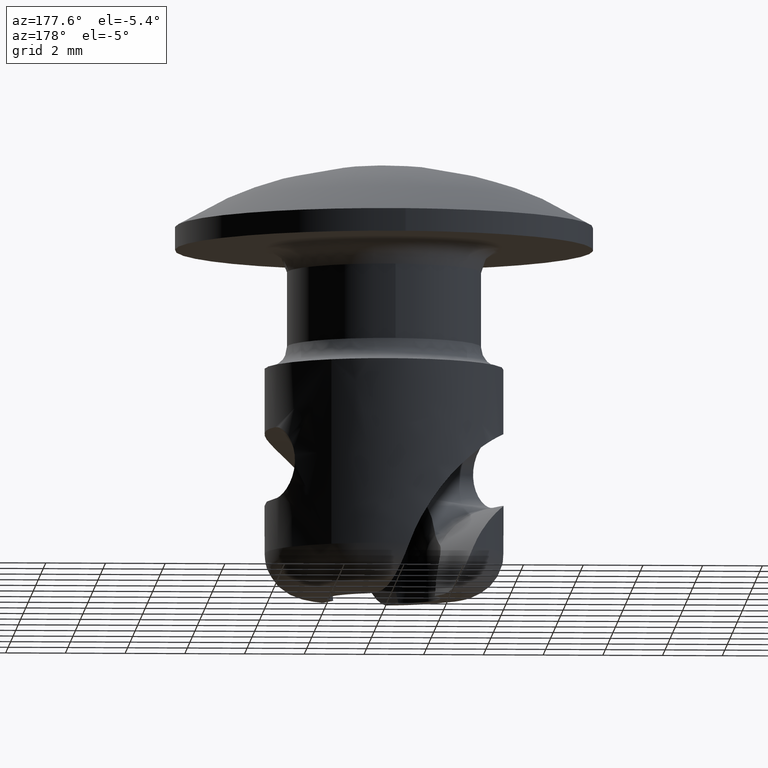
[diagram: clean part render]
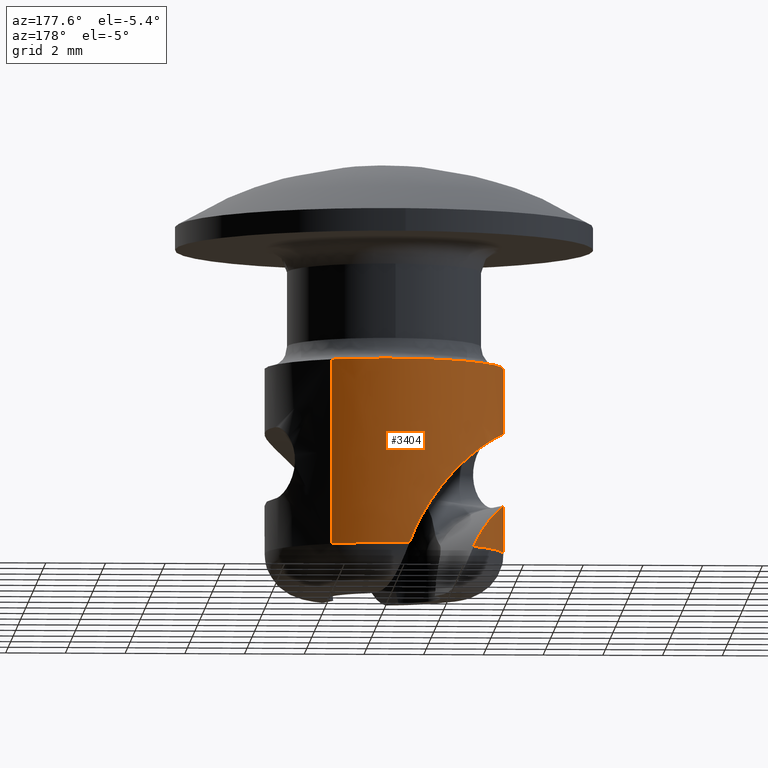
[diagram: same view with one face highlighted and labeled with its STEP entity id]
A machine part, auxiliary view. The second image highlights one B-rep face of the part: STEP entity #3404.
In plain terms, the highlighted face is a freeform B-spline surface patch.
Its self-contained STEP definition (entity closure, byte-faithful):
#938=CARTESIAN_POINT('',(1.908641485124764,3.515267261082327,3.658265999999905));
#939=VERTEX_POINT('',#938);
#953=CARTESIAN_POINT('',(-4.000002039269875,0.0,3.658265999999916));
#954=VERTEX_POINT('',#953);
#955=CARTESIAN_POINT('',(-4.000002039269875,0.0,3.658265999999916));
#956=CARTESIAN_POINT('',(-4.000002040662801,4.000002036704778,3.658265999999914));
#957=CARTESIAN_POINT('',(-3.748949E-009,4.000002032392859,3.658265999999907));
#958=CARTESIAN_POINT('',(1.015874415805972,4.000002031297769,3.658265999999906));
#959=CARTESIAN_POINT('',(1.908641485124764,3.515267261082327,3.658265999999905));
#967=(BOUNDED_CURVE()B_SPLINE_CURVE(2,(#955,#956,#957,#958,#959),.UNSPECIFIED.,.F.,.U.)B_SPLINE_CURVE_WITH_KNOTS((3,2,3),(0.0,0.250000000000000,0.331244701574616),.UNSPECIFIED.)CURVE()GEOMETRIC_REPRESENTATION_ITEM()RATIONAL_B_SPLINE_CURVE((1.0,0.707106781186547,1.0,0.904815911377089,0.871497445752740))REPRESENTATION_ITEM(''));
#968=EDGE_CURVE('',#954,#939,#967,.T.);
#970=CARTESIAN_POINT('',(-3.998738795728591,-0.100520433034861,3.658265999999916));
#971=VERTEX_POINT('',#970);
#972=CARTESIAN_POINT('',(-3.998738795728591,-0.100520433034861,3.658265999999915));
#973=CARTESIAN_POINT('',(-4.000002039254836,-0.050268154128324,3.658265999999916));
#974=CARTESIAN_POINT('',(-4.000002039269875,0.0,3.658265999999916));
#982=(BOUNDED_CURVE()B_SPLINE_CURVE(2,(#972,#973,#974),.UNSPECIFIED.,.F.,.U.)B_SPLINE_CURVE_WITH_KNOTS((3,3),(0.995579891769142,1.0),.UNSPECIFIED.)CURVE()GEOMETRIC_REPRESENTATION_ITEM()RATIONAL_B_SPLINE_CURVE((0.989826157680071,0.994821521091040,1.0))REPRESENTATION_ITEM(''));
#983=EDGE_CURVE('',#971,#954,#982,.T.);
#1026=CARTESIAN_POINT('',(-1.908641485124764,-3.515267261082327,3.658265999999904));
#1027=VERTEX_POINT('',#1026);
#1028=CARTESIAN_POINT('',(-1.908641485124764,-3.515267261082327,3.658265999999905));
#1029=CARTESIAN_POINT('',(-3.940633201038001,-2.411981684536027,3.658265999999910));
#1030=CARTESIAN_POINT('',(-3.998738795728591,-0.100520433034861,3.658265999999915));
#1038=(BOUNDED_CURVE()B_SPLINE_CURVE(2,(#1028,#1029,#1030),.UNSPECIFIED.,.F.,.U.)B_SPLINE_CURVE_WITH_KNOTS((3,3),(0.831244701574616,0.995579891769142),.UNSPECIFIED.)CURVE()GEOMETRIC_REPRESENTATION_ITEM()RATIONAL_B_SPLINE_CURVE((0.871497445752740,0.804103556929867,0.989826157680071))REPRESENTATION_ITEM(''));
#1039=EDGE_CURVE('',#1027,#971,#1038,.T.);
#1169=CARTESIAN_POINT('',(-3.708740166080650,-1.498420013742334,-0.841730999884860));
#1170=VERTEX_POINT('',#1169);
#1775=CARTESIAN_POINT('',(-2.884555229671560,2.771165301272810,-2.541731000000470));
#1776=VERTEX_POINT('',#1775);
#1777=CARTESIAN_POINT('',(-3.708740166080650,-1.498420013742334,-0.841730999884860));
#1778=CARTESIAN_POINT('',(-3.789603342791146,-1.298275522429606,-0.841731085191805));
#1779=CARTESIAN_POINT('',(-3.853266608022815,-1.094363711314453,-0.844898699676440));
#1780=CARTESIAN_POINT('',(-3.947624874398893,-0.679377164730645,-0.858888886197769));
#1781=CARTESIAN_POINT('',(-3.978314908902422,-0.468300505837197,-0.869689622124139));
#1782=CARTESIAN_POINT('',(-3.998773955492142,-0.146262357777916,-0.895468754313125));
#1783=CARTESIAN_POINT('',(-4.001214435422670,-0.039356055029581,-0.905592794241437));
#1784=CARTESIAN_POINT('',(-3.997677503401662,0.172743829529598,-0.929588470703924));
#1785=CARTESIAN_POINT('',(-3.991706842258776,0.278059572015497,-0.943468917006909));
#1786=CARTESIAN_POINT('',(-3.961579676277360,0.591608507315564,-0.992173819946064));
#1787=CARTESIAN_POINT('',(-3.925240589785189,0.797473242374740,-1.033901799248098));
#1788=CARTESIAN_POINT('',(-3.860135973660301,1.049801262182792,-1.104303979249838));
#1789=CARTESIAN_POINT('',(-3.846160973754782,1.099865145250535,-1.119274116367571));
#1790=CARTESIAN_POINT('',(-3.816631997633517,1.198322896425329,-1.150875348232507));
#1791=CARTESIAN_POINT('',(-3.801046300725309,1.246842307484333,-1.167540746194647));
#1792=CARTESIAN_POINT('',(-3.751988769043546,1.390254244868291,-1.220316447285539));
#1793=CARTESIAN_POINT('',(-3.716216162029630,1.483002367819371,-1.259201711167339));
#1794=CARTESIAN_POINT('',(-3.639395182733260,1.662636845654967,-1.345457747218346));
#1795=CARTESIAN_POINT('',(-3.598344842298541,1.749523326163017,-1.392826489075745));
#1796=CARTESIAN_POINT('',(-3.533479603993701,1.875303522526065,-1.471180455769283));
#1797=CARTESIAN_POINT('',(-3.511259477338315,1.916552436971531,-1.498584499654438));
#1798=CARTESIAN_POINT('',(-3.466426671580432,1.996497554886817,-1.555254974171278));
#1799=CARTESIAN_POINT('',(-3.443755817943394,2.035314400837107,-1.584589094828801));
#1800=CARTESIAN_POINT('',(-3.329540518945864,2.223794195843674,-1.736356739794271));
#1801=CARTESIAN_POINT('',(-3.235430647707428,2.356708378572311,-1.874027955967950));
#1802=CARTESIAN_POINT('',(-3.120600981695306,2.502647577831652,-2.068504378930841));
#1803=CARTESIAN_POINT('',(-3.097723793038400,2.530882099920727,-2.108617462539967));
#1804=CARTESIAN_POINT('',(-3.052670196831338,2.585045757211015,-2.190677628121291));
#1805=CARTESIAN_POINT('',(-3.030528409444796,2.610938036005944,-2.232554031894098));
#1806=CARTESIAN_POINT('',(-2.965449095197070,2.685230547071238,-2.360714131926009));
#1807=CARTESIAN_POINT('',(-2.923857825347109,2.730254531340306,-2.449524356297505));
#1808=CARTESIAN_POINT('',(-2.884555229671560,2.771165301272810,-2.541731000000470));
#1809=B_SPLINE_CURVE_WITH_KNOTS('',3,(#1777,#1778,#1779,#1780,#1781,#1782,#1783,#1784,#1785,#1786,#1787,#1788,#1789,#1790,#1791,#1792,#1793,#1794,#1795,#1796,#1797,#1798,#1799,#1800,#1801,#1802,#1803,#1804,#1805,#1806,#1807,#1808),.UNSPECIFIED.,.F.,.U.,(4,2,2,2,2,2,2,2,2,2,2,2,2,2,2,4),(0.0,0.125000000000000,0.250000000000000,0.312500000000000,0.375000000000000,0.500000000000000,0.531250000000000,0.562500000000000,0.625000000000000,0.687500000000000,0.718750000000000,0.750000000000000,0.875000000000000,0.906250000000000,0.937500000000000,1.0),.UNSPECIFIED.);
#1810=EDGE_CURVE('',#1170,#1776,#1809,.T.);
#2698=CARTESIAN_POINT('',(-1.908643068549767,-3.515266381128359,-2.541731000000000));
#2699=VERTEX_POINT('',#2698);
#2713=CARTESIAN_POINT('',(-1.908643068549767,-3.515266381128359,-2.541731000000000));
#2714=CARTESIAN_POINT('',(-2.966838043183742,-2.940710627283791,-2.541731000000055));
#2715=CARTESIAN_POINT('',(-3.532011302466343,-1.877474952365220,-2.541731000000139));
#2716=CARTESIAN_POINT('',(-4.892194440281170,0.681377952995384,-2.541731000000340));
#2717=CARTESIAN_POINT('',(-2.884555229671560,2.771165301272810,-2.541731000000470));
#2725=(BOUNDED_CURVE()B_SPLINE_CURVE(2,(#2713,#2714,#2715,#2716,#2717),.UNSPECIFIED.,.F.,.U.)B_SPLINE_CURVE_WITH_KNOTS((3,2,3),(0.266260725077179,0.500000000000000,1.0),.UNSPECIFIED.)CURVE()GEOMETRIC_REPRESENTATION_ITEM()RATIONAL_B_SPLINE_CURVE((0.905308572045853,0.911091442488655,1.0,0.809812541044500,1.0))REPRESENTATION_ITEM(''));
#2726=EDGE_CURVE('',#2699,#1776,#2725,.T.);
#2964=CARTESIAN_POINT('',(-3.708740166083640,-1.498420013741502,1.558268999999575));
#2965=VERTEX_POINT('',#2964);
#2966=CARTESIAN_POINT('',(-3.708740166083640,-1.498420013741502,1.558268999999575));
#2967=CARTESIAN_POINT('',(-3.693984804503108,-1.534941016963111,1.558269545527997));
#2968=CARTESIAN_POINT('',(-3.678609929491789,-1.571438163734566,1.556330085236199));
#2969=CARTESIAN_POINT('',(-3.646729819276201,-1.644065248400654,1.548455094508398));
#2970=CARTESIAN_POINT('',(-3.630464258008951,-1.679654045086679,1.542584198483850));
#2971=CARTESIAN_POINT('',(-3.580789229225651,-1.784358087390900,1.519388538524475));
#2972=CARTESIAN_POINT('',(-3.546496214110912,-1.851424095955877,1.496534584532224));
#2973=CARTESIAN_POINT('',(-3.493747797755471,-1.948099096153773,1.451016600783363));
#2974=CARTESIAN_POINT('',(-3.476010681946088,-1.979540814555592,1.433990395770993));
#2975=CARTESIAN_POINT('',(-3.440971407175696,-2.039840158564334,1.396914775807178));
#2976=CARTESIAN_POINT('',(-3.406186145007936,-2.097889614268136,1.356665676308153));
#2977=CARTESIAN_POINT('',(-3.372145822648671,-2.151649813060058,1.310156958417208));
#2978=CARTESIAN_POINT('',(-3.338620239168296,-2.203310978019238,1.260464214225891));
#2979=CARTESIAN_POINT('',(-3.322040082755243,-2.228198212001126,1.233882838865567));
#2980=CARTESIAN_POINT('',(-3.274233967292055,-2.298393741251017,1.150769080897216));
#2981=CARTESIAN_POINT('',(-3.244710284799387,-2.339632263326918,1.090666577720010));
#2982=CARTESIAN_POINT('',(-3.191484927614344,-2.411731311046215,0.961031912711963));
#2983=CARTESIAN_POINT('',(-3.167663022440433,-2.442724565092989,0.890784038392186));
#2984=CARTESIAN_POINT('',(-3.129119018645331,-2.491908202920440,0.746202575940968));
#2985=CARTESIAN_POINT('',(-3.114107283994574,-2.510501039214634,0.671378398995348));
#2986=CARTESIAN_POINT('',(-3.098748930936733,-2.529394609742397,0.555178428091249));
#2987=CARTESIAN_POINT('',(-3.094827956845908,-2.534180868814679,0.515595312487187));
#2988=CARTESIAN_POINT('',(-3.089658813791603,-2.540480500356903,0.436859185894583));
#2989=CARTESIAN_POINT('',(-3.087091994997635,-2.543594090197690,0.358196785403281));
#2990=CARTESIAN_POINT('',(-3.089662003146033,-2.540476589318636,0.279679110824961));
#2991=CARTESIAN_POINT('',(-3.094805611876514,-2.534208124691397,0.201234349811936));
#2992=CARTESIAN_POINT('',(-3.098686093041943,-2.529471694593282,0.161889194587072));
#2993=CARTESIAN_POINT('',(-3.114106219290229,-2.510502780704750,0.045059928412412));
#2994=CARTESIAN_POINT('',(-3.129183437444234,-2.491827752140526,-0.029961139747914));
#2995=CARTESIAN_POINT('',(-3.158122822499329,-2.454897347873494,-0.138432384809208));
#2996=CARTESIAN_POINT('',(-3.168829011976771,-2.441088421445683,-0.173907758540699));
#2997=CARTESIAN_POINT('',(-3.192279260588727,-2.410340870266360,-0.243475240412329));
#2998=CARTESIAN_POINT('',(-3.204917461591169,-2.393537989251315,-0.277232317327013));
#2999=CARTESIAN_POINT('',(-3.244909870758577,-2.339357096773280,-0.374569541669284));
#3000=CARTESIAN_POINT('',(-3.274468797233802,-2.298059793875255,-0.434684390864520));
#3001=CARTESIAN_POINT('',(-3.322288608406039,-2.227827798607108,-0.517754133649347));
#3002=CARTESIAN_POINT('',(-3.338876229446152,-2.202923177163684,-0.544325842145940));
#3003=CARTESIAN_POINT('',(-3.372406863625137,-2.151240792246711,-0.593985377685154));
#3004=CARTESIAN_POINT('',(-3.389420252773961,-2.124363952786033,-0.617210135150431));
#3005=CARTESIAN_POINT('',(-3.440989013281977,-2.040566968961255,-0.682165438688970));
#3006=CARTESIAN_POINT('',(-3.476125544171655,-1.980401546670124,-0.719280222529629));
#3007=CARTESIAN_POINT('',(-3.546664166012255,-1.851111119961071,-0.780133175558099));
#3008=CARTESIAN_POINT('',(-3.580953215636841,-1.784019946925487,-0.802937055094647));
#3009=CARTESIAN_POINT('',(-3.630489778374271,-1.679596488092740,-0.826053127230018));
#3010=CARTESIAN_POINT('',(-3.646687078966211,-1.644154603838236,-0.831896389450070));
#3011=CARTESIAN_POINT('',(-3.678391099503886,-1.571944633988746,-0.839748094080486));
#3012=CARTESIAN_POINT('',(-3.693926957854120,-1.535084193231995,-0.841731547663941));
#3013=CARTESIAN_POINT('',(-3.708740166080650,-1.498420013742334,-0.841730999884860));
#3014=B_SPLINE_CURVE_WITH_KNOTS('',3,(#2966,#2967,#2968,#2969,#2970,#2971,#2972,#2973,#2974,#2975,#2976,#2977,#2978,#2979,#2980,#2981,#2982,#2983,#2984,#2985,#2986,#2987,#2988,#2989,#2990,#2991,#2992,#2993,#2994,#2995,#2996,#2997,#2998,#2999,#3000,#3001,#3002,#3003,#3004,#3005,#3006,#3007,#3008,#3009,#3010,#3011,#3012,#3013),.UNSPECIFIED.,.F.,.U.,(4,2,2,2,2,1,2,2,2,2,2,2,1,2,2,2,2,2,2,2,2,2,2,2,4),(0.0,0.031250000000000,0.062500000000000,0.125000000000000,0.156250000000000,0.187500000000000,0.218750000000000,0.250000000000000,0.312500000000000,0.375000000000000,0.437500000000000,0.468750000000000,0.500000000000000,0.531250000000000,0.562500000000000,0.625000000000001,0.656250000000001,0.687500000000001,0.750000000000001,0.781250000000001,0.812500000000001,0.875000000000000,0.937500000000000,0.968750000000000,1.0),.UNSPECIFIED.);
#3015=EDGE_CURVE('',#2965,#1170,#3014,.T.);
#3244=CARTESIAN_POINT('',(-1.908641485124764,-3.515267261082327,3.658265999999904));
#3245=CARTESIAN_POINT('',(-1.908643068549767,-3.515266381128359,-2.541731000000000));
#3246=QUASI_UNIFORM_CURVE('',1,(#3244,#3245),.UNSPECIFIED.,.F.,.U.);
#3247=EDGE_CURVE('',#1027,#2699,#3246,.T.);
#3289=CARTESIAN_POINT('',(1.908643068549767,3.515266381128359,-2.541731000000000));
#3290=VERTEX_POINT('',#3289);
#3306=CARTESIAN_POINT('',(1.908641485124764,3.515267261082327,3.658265999999905));
#3307=CARTESIAN_POINT('',(1.908643068549767,3.515266381128359,-2.541731000000000));
#3308=QUASI_UNIFORM_CURVE('',1,(#3306,#3307),.UNSPECIFIED.,.F.,.U.);
#3309=EDGE_CURVE('',#939,#3290,#3308,.T.);
#3314=CARTESIAN_POINT('',(-1.908642749977136,-3.515266563156077,3.813265924999927));
#3315=CARTESIAN_POINT('',(-5.423909313133214,-1.606623813178941,3.813265924999926));
#3316=CARTESIAN_POINT('',(-3.515266563156077,1.908642749977136,3.813265924999927));
#3317=CARTESIAN_POINT('',(-1.606623813178941,5.423909313133214,3.813265924999926));
#3318=CARTESIAN_POINT('',(1.908642749977136,3.515266563156077,3.813265924999927));
#3319=CARTESIAN_POINT('',(-1.908642749977136,-3.515266563156077,-2.700605923125481));
#3320=CARTESIAN_POINT('',(-5.423909313133214,-1.606623813178941,-2.700605923125481));
#3321=CARTESIAN_POINT('',(-3.515266563156077,1.908642749977136,-2.700605923125481));
#3322=CARTESIAN_POINT('',(-1.606623813178941,5.423909313133214,-2.700605923125481));
#3323=CARTESIAN_POINT('',(1.908642749977136,3.515266563156077,-2.700605923125481));
#3331=(BOUNDED_SURFACE()B_SPLINE_SURFACE(2,1,((#3314,#3319),(#3315,#3320),(#3316,#3321),(#3317,#3322),(#3318,#3323)),.UNSPECIFIED.,.F.,.F.,.U.)B_SPLINE_SURFACE_WITH_KNOTS((3,2,3),(2,2),(0.0,6.627420344210218,13.254840688420440),(0.0,6.513871848125408),.UNSPECIFIED.)GEOMETRIC_REPRESENTATION_ITEM()RATIONAL_B_SPLINE_SURFACE(((1.0,1.0),(0.707106781186548,0.707106781186548),(1.0,1.0),(0.707106781186548,0.707106781186548),(1.0,1.0)))REPRESENTATION_ITEM('')SURFACE());
#3332=ORIENTED_EDGE('',*,*,#968,.T.);
#3333=ORIENTED_EDGE('',*,*,#3309,.T.);
#3334=CARTESIAN_POINT('',(-0.683457335295928,3.941180308982785,-2.541731000000000));
#3335=VERTEX_POINT('',#3334);
#3336=CARTESIAN_POINT('',(-0.683457335295928,3.941180308982785,-2.541731000000000));
#3337=CARTESIAN_POINT('',(0.686623547545400,4.178772027887586,-2.541731000000001));
#3338=CARTESIAN_POINT('',(1.908643068549766,3.515266381128358,-2.541731000000000));
#3346=(BOUNDED_CURVE()B_SPLINE_CURVE(2,(#3336,#3337,#3338),.UNSPECIFIED.,.F.,.U.)B_SPLINE_CURVE_WITH_KNOTS((3,3),(0.0,0.266260725077177),.UNSPECIFIED.)CURVE()GEOMETRIC_REPRESENTATION_ITEM()RATIONAL_B_SPLINE_CURVE((1.0,0.898721098555846,0.905308572045853))REPRESENTATION_ITEM(''));
#3347=EDGE_CURVE('',#3335,#3290,#3346,.T.);
#3348=ORIENTED_EDGE('',*,*,#3347,.F.);
#3349=CARTESIAN_POINT('',(-3.708740166083640,-1.498420013741502,1.558268999999575));
#3350=CARTESIAN_POINT('',(-3.778569791304252,-1.325584671532401,1.558268926310414));
#3351=CARTESIAN_POINT('',(-3.835544737591124,-1.149955319841009,1.555841438661055));
#3352=CARTESIAN_POINT('',(-3.924842532281933,-0.793354755758289,1.545859758571302));
#3353=CARTESIAN_POINT('',(-3.957161476546685,-0.612382601381122,1.538307521203338));
#3354=CARTESIAN_POINT('',(-3.981910076951257,-0.382806738395347,1.524732209680443));
#3355=CARTESIAN_POINT('',(-3.986073839992971,-0.336722868838410,1.521807234873440));
#3356=CARTESIAN_POINT('',(-3.992809314985935,-0.244214500872937,1.515500743744085));
#3357=CARTESIAN_POINT('',(-3.995380418801009,-0.197729923926279,1.512113726741918));
#3358=CARTESIAN_POINT('',(-4.000641647889418,-0.058865855470329,1.501294828076247));
#3359=CARTESIAN_POINT('',(-4.000914651434753,0.033248649638663,1.493187167201519));
#3360=CARTESIAN_POINT('',(-3.992325739143100,0.308189559196727,1.465802736969401));
#3361=CARTESIAN_POINT('',(-3.974091756436341,0.489621612015337,1.443498334347848));
#3362=CARTESIAN_POINT('',(-3.928433437282044,0.758753253395824,1.401898655610931));
#3363=CARTESIAN_POINT('',(-3.910153448908449,0.847959016905675,1.386666904149550));
#3364=CARTESIAN_POINT('',(-3.867440931754574,1.025297580096418,1.353015746337230));
#3365=CARTESIAN_POINT('',(-3.842907123760051,1.113674477500730,1.334525606485011));
#3366=CARTESIAN_POINT('',(-3.761458911071837,1.372662523637084,1.274557836056728));
#3367=CARTESIAN_POINT('',(-3.696473910584353,1.538491198809079,1.228384917341415));
#3368=CARTESIAN_POINT('',(-3.547373207993857,1.856614624431018,1.120972639753160));
#3369=CARTESIAN_POINT('',(-3.463245174804098,2.008906009784941,1.059739879224237));
#3370=CARTESIAN_POINT('',(-3.323896835717850,2.226918177112875,0.954127929796914));
#3371=CARTESIAN_POINT('',(-3.275633786675320,2.297228692864336,0.916908431059219));
#3372=CARTESIAN_POINT('',(-3.176564219712284,2.432380753453653,0.838779737560373));
#3373=CARTESIAN_POINT('',(-3.125655406097994,2.497382362031901,0.797793663590382));
#3374=CARTESIAN_POINT('',(-2.969392782382336,2.684998985496439,0.668838745284356));
#3375=CARTESIAN_POINT('',(-2.860511902192696,2.800238120549240,0.574879402421139));
#3376=CARTESIAN_POINT('',(-2.692212635019209,2.959386543567110,0.420938058538402));
#3377=CARTESIAN_POINT('',(-2.635112994889657,3.010275875673840,0.367286458083778));
#3378=CARTESIAN_POINT('',(-2.521036063565093,3.106438235295281,0.256899568731587));
#3379=CARTESIAN_POINT('',(-2.463930082032928,3.151850552760749,0.200055546088115));
#3380=CARTESIAN_POINT('',(-2.292860829637235,3.280730737047150,0.024572318735168));
#3381=CARTESIAN_POINT('',(-2.179152880917561,3.356860644165187,-0.099012093316397));
#3382=CARTESIAN_POINT('',(-2.010704615361361,3.458523418059509,-0.294382743183710));
#3383=CARTESIAN_POINT('',(-1.954905366494576,3.490317037717117,-0.361173419321958));
#3384=CARTESIAN_POINT('',(-1.844259748555736,3.550024506335813,-0.498124319469526));
#3385=CARTESIAN_POINT('',(-1.789656302548552,3.577802465819443,-0.567993274616530));
#3386=CARTESIAN_POINT('',(-1.522256496855822,3.706633978738532,-0.922120931566441));
#3387=CARTESIAN_POINT('',(-1.324605537405187,3.778845564466568,-1.222661207132163));
#3388=CARTESIAN_POINT('',(-1.058717785241709,3.858457227504110,-1.699109089742132));
#3389=CARTESIAN_POINT('',(-0.975193753849415,3.880127158651566,-1.862221561470921));
#3390=CARTESIAN_POINT('',(-0.819595854785331,3.915948449567631,-2.197297461383976));
#3391=CARTESIAN_POINT('',(-0.748103077534085,3.929969807745981,-2.368032275091810));
#3392=CARTESIAN_POINT('',(-0.683457335295928,3.941180308982785,-2.541731000000000));
#3393=B_SPLINE_CURVE_WITH_KNOTS('',3,(#3349,#3350,#3351,#3352,#3353,#3354,#3355,#3356,#3357,#3358,#3359,#3360,#3361,#3362,#3363,#3364,#3365,#3366,#3367,#3368,#3369,#3370,#3371,#3372,#3373,#3374,#3375,#3376,#3377,#3378,#3379,#3380,#3381,#3382,#3383,#3384,#3385,#3386,#3387,#3388,#3389,#3390,#3391,#3392),.UNSPECIFIED.,.F.,.U.,(4,2,2,2,2,2,2,2,2,2,2,2,2,2,2,2,2,2,2,2,2,4),(0.0,0.062500000000000,0.125000000000000,0.140625000000000,0.156250000000000,0.187500000000000,0.250000000000000,0.281250000000001,0.312500000000001,0.375000000000001,0.437500000000001,0.468750000000001,0.500000000000001,0.562500000000001,0.593750000000001,0.625000000000001,0.687500000000001,0.718750000000000,0.750000000000000,0.875000000000000,0.937500000000000,1.0),.UNSPECIFIED.);
#3394=EDGE_CURVE('',#2965,#3335,#3393,.T.);
#3395=ORIENTED_EDGE('',*,*,#3394,.F.);
#3396=ORIENTED_EDGE('',*,*,#3015,.T.);
#3397=ORIENTED_EDGE('',*,*,#1810,.T.);
#3398=ORIENTED_EDGE('',*,*,#2726,.F.);
#3399=ORIENTED_EDGE('',*,*,#3247,.F.);
#3400=ORIENTED_EDGE('',*,*,#1039,.T.);
#3401=ORIENTED_EDGE('',*,*,#983,.T.);
#3402=EDGE_LOOP('',(#3332,#3333,#3348,#3395,#3396,#3397,#3398,#3399,#3400,#3401));
#3403=FACE_OUTER_BOUND('',#3402,.T.);
#3404=ADVANCED_FACE('',(#3403),#3331,.T.);